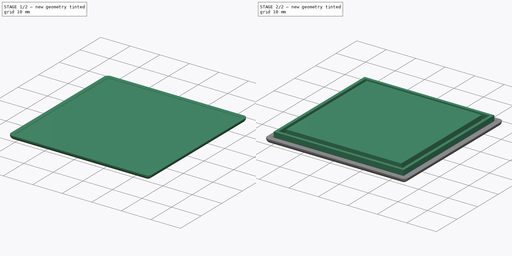
[diagram: build sequence overview — one tinted view per stage of 2, left to right]
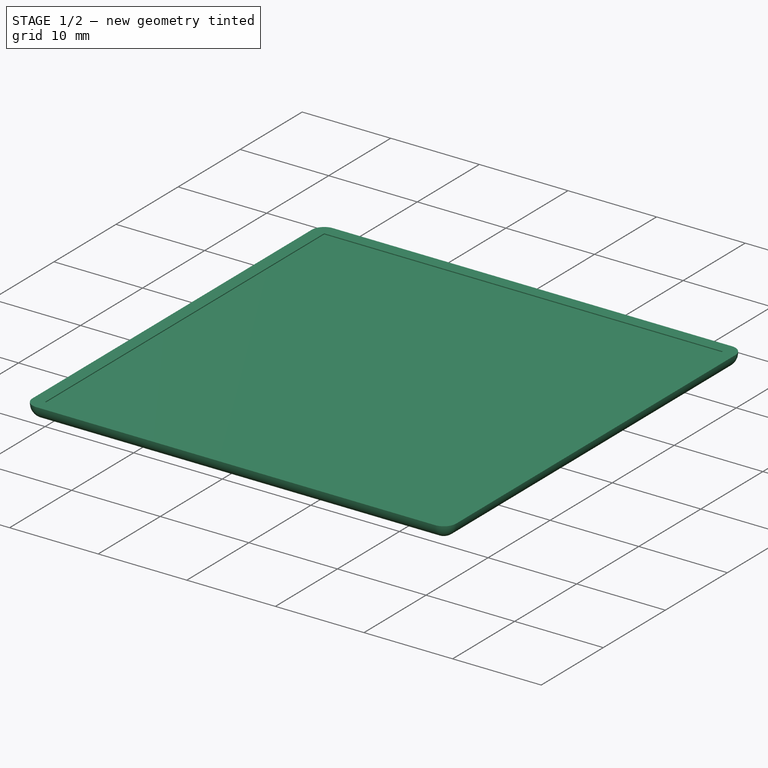
[diagram: stage 1 of 2 — iso view after this stage's code; geometry added in this stage tinted green]
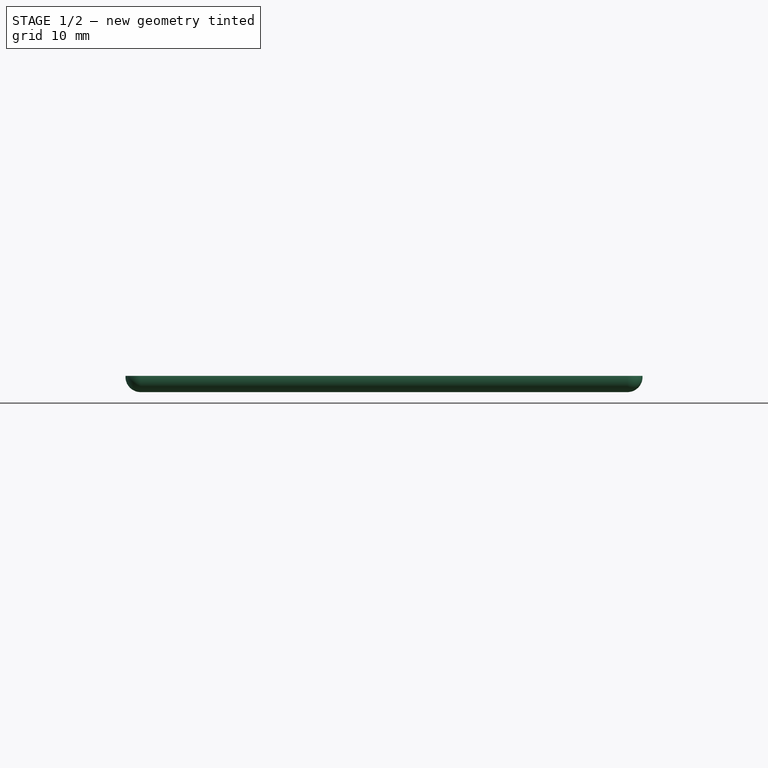
[diagram: stage 1 of 2 — front view after this stage's code; geometry added in this stage tinted green]
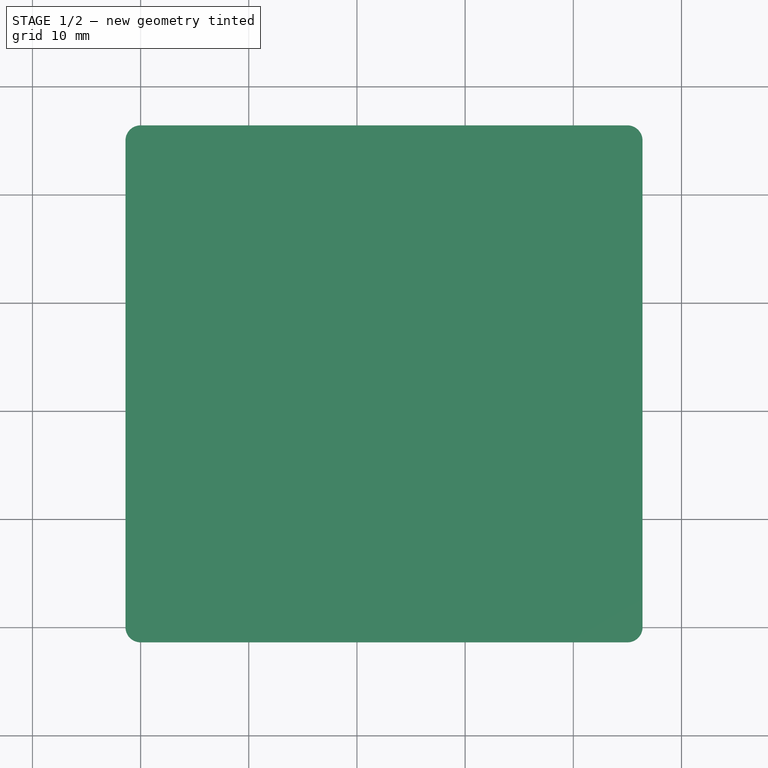
[diagram: stage 1 of 2 — top view after this stage's code; geometry added in this stage tinted green]
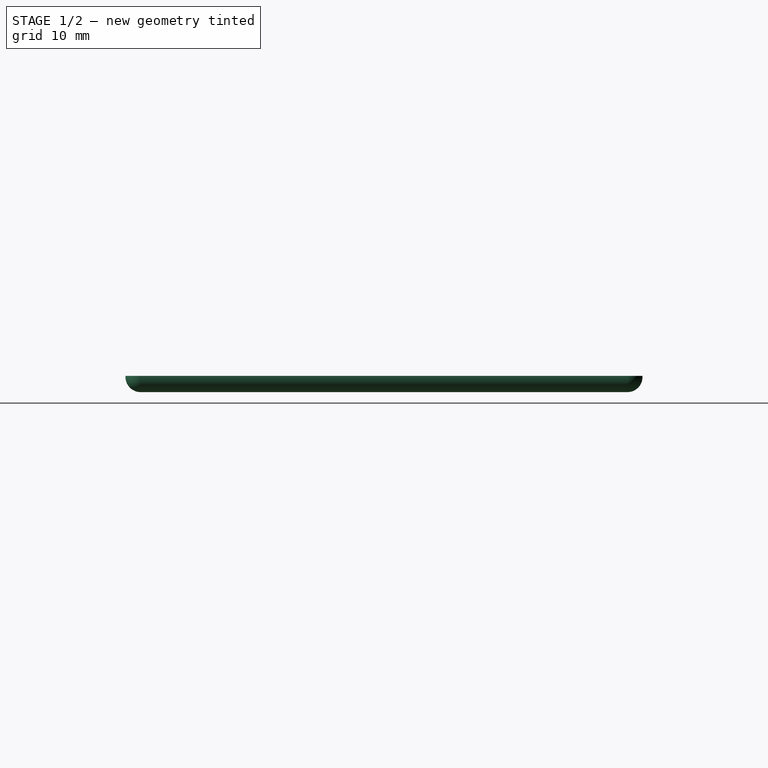
[diagram: stage 1 of 2 — right view after this stage's code; geometry added in this stage tinted green]
FCSTD DOCUMENT  (FreeCAD 0.16R6706 (Git))
Label: fsr_lid
License: All rights reserved
LicenseURL: http://en.wikipedia.org/wiki/All_rights_reserved
objects: Sketcher::SketchObject×3, PartDesign::Pad×3, Part::Thickness×1
note: 10 computed .brp shape members not serialized (recipe doc carries the construction recipe); baked Part::Feature solids carry a one-line shape summary decoded from their .brp

FEATURE [Sketcher::SketchObject] Sketch
  sketch-geometry (4):
    g0: LineSegment StartX=0 StartY=45 StartZ=0 EndX=45 EndY=45 EndZ=0
    g1: LineSegment StartX=45 StartY=45 StartZ=0 EndX=45 EndY=0 EndZ=0
    g2: LineSegment StartX=45 StartY=0 StartZ=0 EndX=0 EndY=0 EndZ=0
    g3: LineSegment StartX=0 StartY=0 StartZ=0 EndX=0 EndY=45 EndZ=0
  constraints (11):
    c: Coincident(g0,g1)
    c: Coincident(g1,g2)
    c: Coincident(g2,g3)
    c: Coincident(g3,g0)
    c: Horizontal(g0)
    c: Horizontal(g2)
    c: Vertical(g1)
    c: Vertical(g3)
    c: Coincident(g2,g-1)
    c: DistanceY(g-1,g0) = 45
    c: DistanceX(g0,g0) = 45
FEATURE [PartDesign::Pad] Pad
  Length = 0.1
  Length2 = 100
  Sketch = -> Sketch
  Type = 0
FEATURE [Part::Thickness] Thickness
  Faces = -> Pad [Face6]
  Intersection = false
  Join = 0
  Mode = 0
  SelfIntersection = false
  Value = 1.4
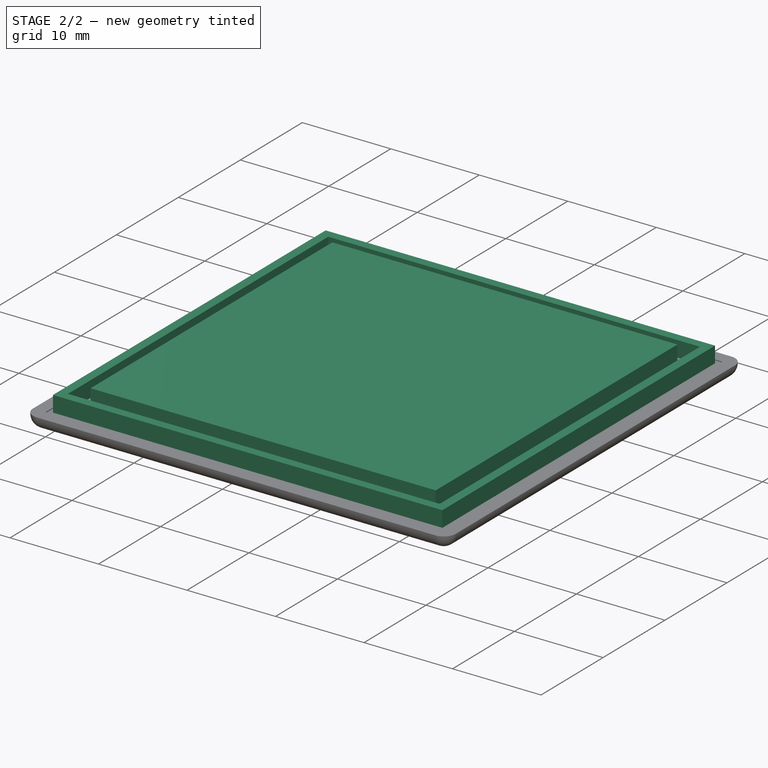
[diagram: stage 2 of 2 — iso view after this stage's code; geometry added in this stage tinted green]
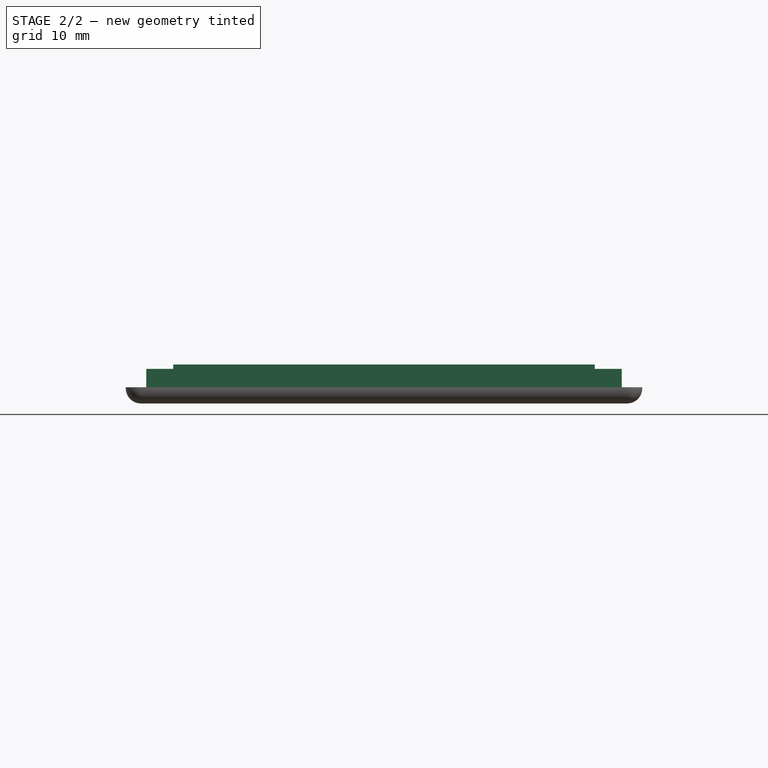
[diagram: stage 2 of 2 — front view after this stage's code; geometry added in this stage tinted green]
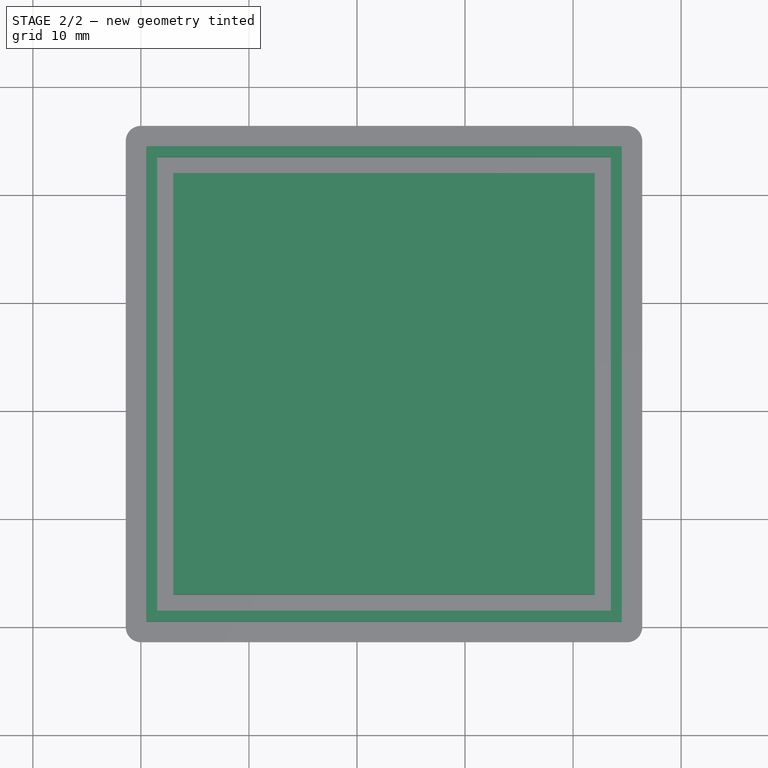
[diagram: stage 2 of 2 — top view after this stage's code; geometry added in this stage tinted green]
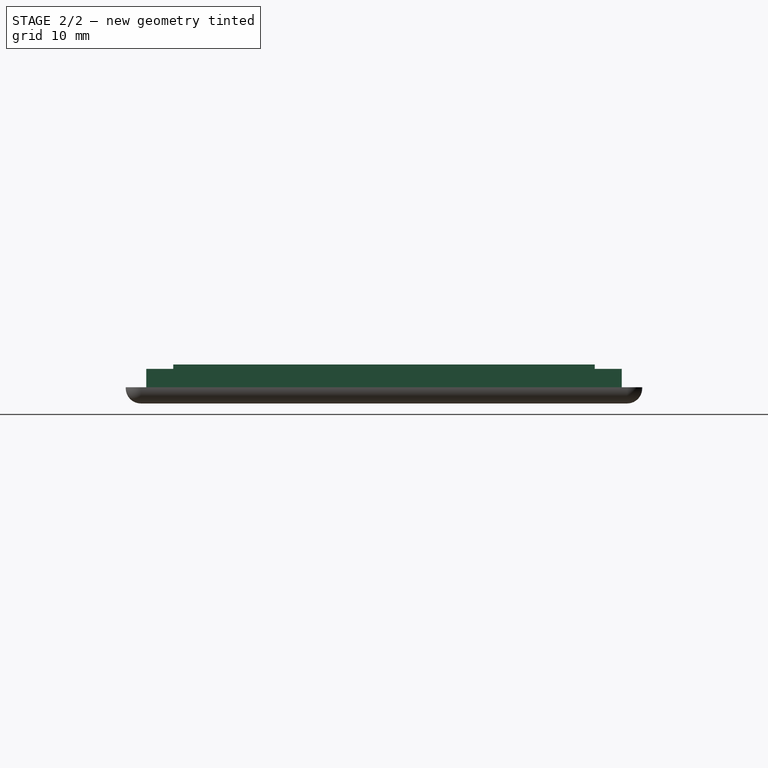
[diagram: stage 2 of 2 — right view after this stage's code; geometry added in this stage tinted green]
FEATURE [Sketcher::SketchObject] Sketch001
  Support = -> Thickness [Face5]
  sketch-geometry (8):
    g0: LineSegment StartX=0.5 StartY=44.5 StartZ=0 EndX=44.5 EndY=44.5 EndZ=0
    g1: LineSegment StartX=44.5 StartY=44.5 StartZ=0 EndX=44.5 EndY=0.5 EndZ=0
    g2: LineSegment StartX=44.5 StartY=0.5 StartZ=0 EndX=0.5 EndY=0.5 EndZ=0
    g3: LineSegment StartX=0.5 StartY=0.5 StartZ=0 EndX=0.5 EndY=44.5 EndZ=0
    g4: LineSegment StartX=1.5 StartY=43.5 StartZ=0 EndX=43.5 EndY=43.5 EndZ=0
    g5: LineSegment StartX=43.5 StartY=43.5 StartZ=0 EndX=43.5 EndY=1.5 EndZ=0
    g6: LineSegment StartX=43.5 StartY=1.5 StartZ=0 EndX=1.5 EndY=1.5 EndZ=0
    g7: LineSegment StartX=1.5 StartY=1.5 StartZ=0 EndX=1.5 EndY=43.5 EndZ=0
  constraints (24):
    c: Coincident(g0,g1)
    c: Coincident(g1,g2)
    c: Coincident(g2,g3)
    c: Coincident(g3,g0)
    c: Horizontal(g0)
    c: Horizontal(g2)
    c: Vertical(g1)
    c: Vertical(g3)
    c: DistanceY(g2,g0) = 44
    c: DistanceX(g2,g1) = 44
    c: DistanceX(g-1,g2) = 0.5
    c: DistanceY(g-1,g2) = 0.5
    c: Coincident(g4,g5)
    c: Coincident(g5,g6)
    c: Coincident(g6,g7)
    c: Coincident(g7,g4)
    c: Horizontal(g4)
    c: Horizontal(g6)
    c: Vertical(g5)
    c: Vertical(g7)
    c: DistanceY(g6,g4) = 42
    c: DistanceX(g4,g4) = 42
    c: DistanceX(g-1,g6) = 1.5
    c: DistanceY(g-1,g6) = 1.5
FEATURE [PartDesign::Pad] Pad001
  Length = 1.8
  Length2 = 100
  Sketch = -> Sketch001
  Type = 0
FEATURE [Sketcher::SketchObject] Sketch002
  Support = -> Pad001 [Face33]
  sketch-geometry (4):
    g0: LineSegment StartX=3 StartY=42 StartZ=0 EndX=42 EndY=42 EndZ=0
    g1: LineSegment StartX=42 StartY=42 StartZ=0 EndX=42 EndY=3 EndZ=0
    g2: LineSegment StartX=42 StartY=3 StartZ=0 EndX=3 EndY=3 EndZ=0
    g3: LineSegment StartX=3 StartY=3 StartZ=0 EndX=3 EndY=42 EndZ=0
  constraints (12):
    c: Coincident(g0,g1)
    c: Coincident(g1,g2)
    c: Coincident(g2,g3)
    c: Coincident(g3,g0)
    c: Horizontal(g0)
    c: Horizontal(g2)
    c: Vertical(g1)
    c: Vertical(g3)
    c: DistanceY(g2,g0) = 39
    c: DistanceX(g0,g0) = 39
    c: DistanceX(g-1,g2) = 3
    c: DistanceY(g-1,g2) = 3
FEATURE [PartDesign::Pad] Pad002
  Length = 2.2
  Length2 = 100
  Sketch = -> Sketch002
  Type = 0
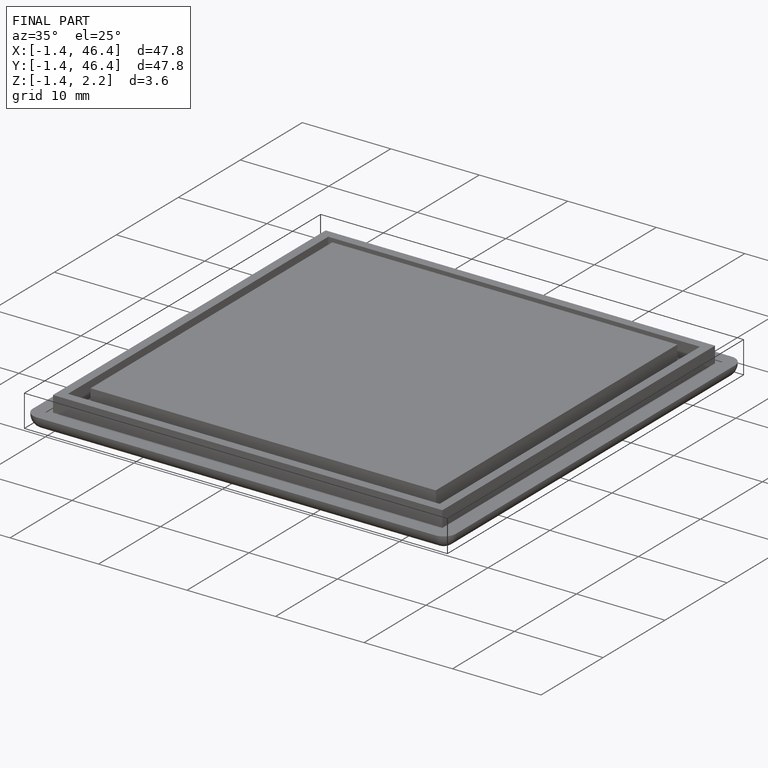
[diagram: finished part — iso view with bounding-box wireframe]
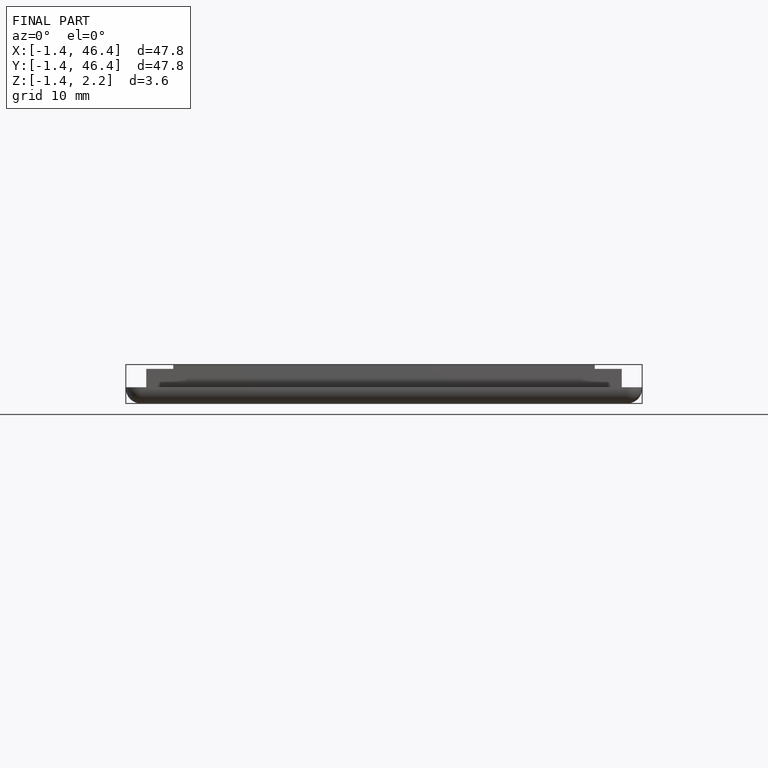
[diagram: finished part — front view with bounding-box wireframe]
